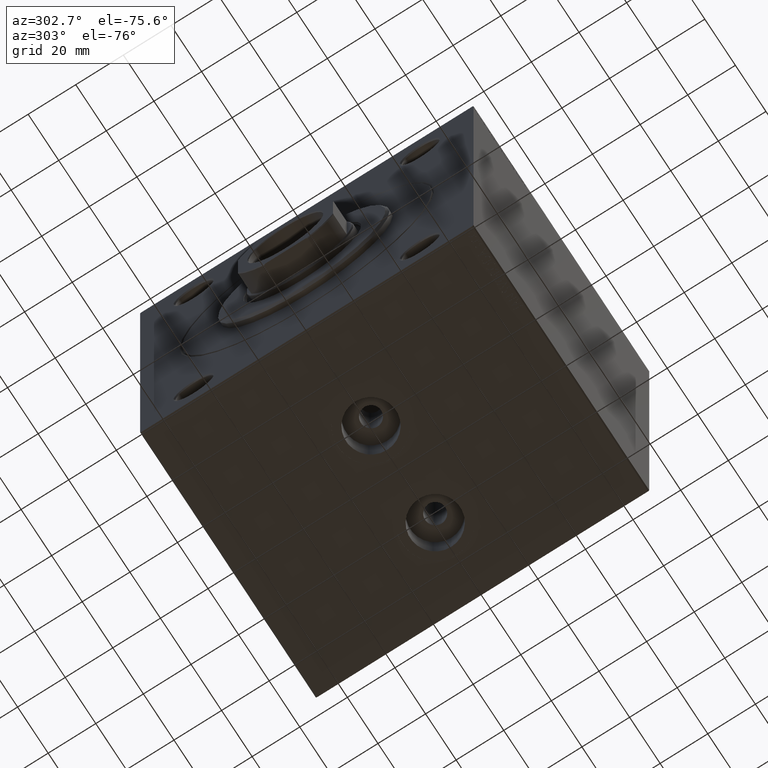
[diagram: clean part render]
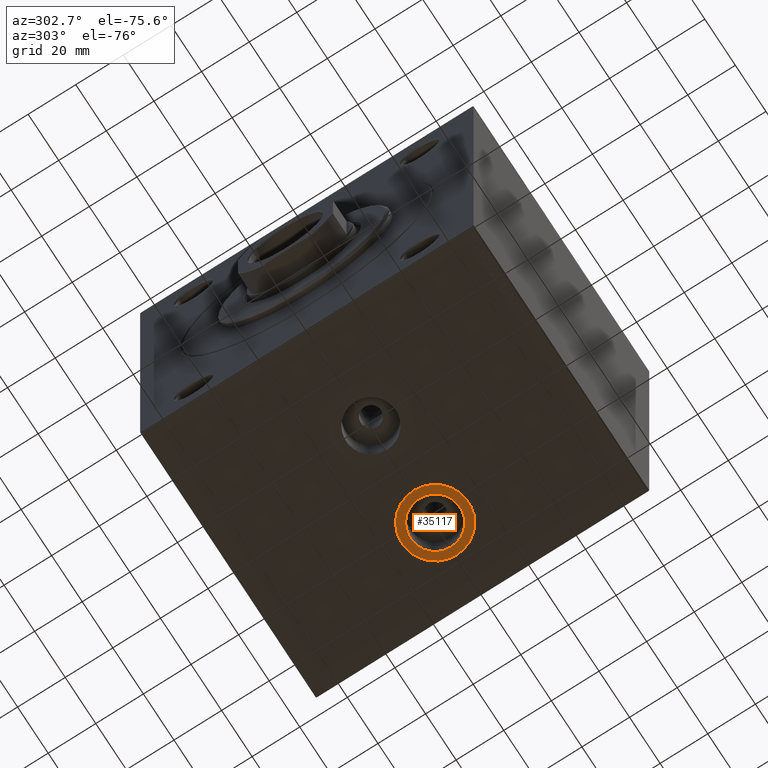
[diagram: same view with one face highlighted and labeled with its STEP entity id]
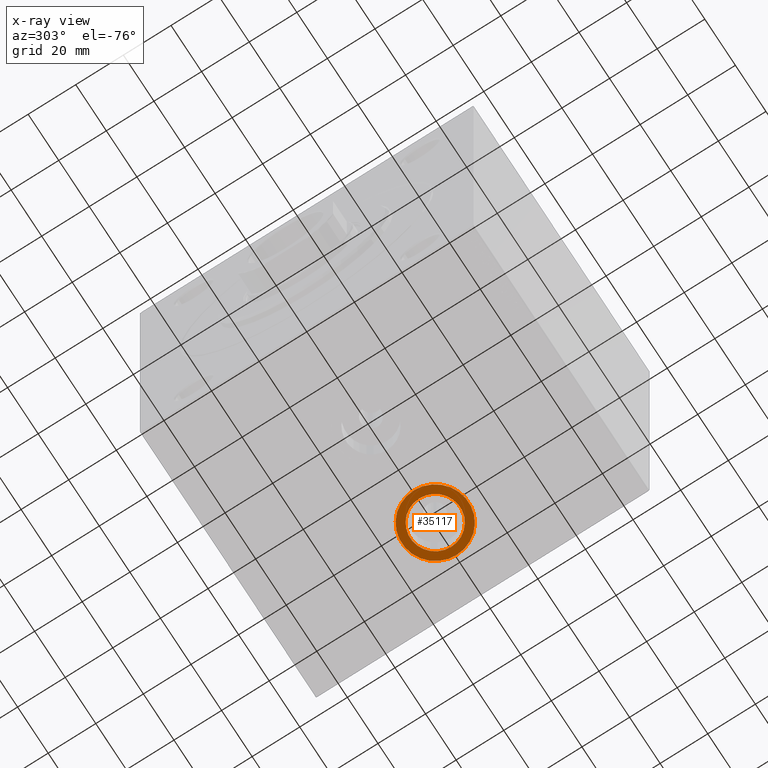
[diagram: x-ray of the same camera — body ghosted, the highlighted face saturated]
A machine part, auxiliary view. The second image highlights one B-rep face of the part: STEP entity #35117.
The next image is the same camera in x-ray: the body ghosted, the highlighted face saturated — about 0% of this face is hidden behind the body in this view.
In plain terms, the highlighted planar face has unit normal (0, 0, -1).
Its self-contained STEP definition (entity closure, byte-faithful):
#1167 = DIRECTION ( 'NONE',  ( 0.000000000000000000, 0.000000000000000000, -1.000000000000000000 ) ) ;
#1359 = FACE_OUTER_BOUND ( 'NONE', #45365, .T. ) ;
#1815 = CARTESIAN_POINT ( 'NONE',  ( 83.99999999999998579, -1.272749711318452810E-14, -84.90000000000000568 ) ) ;
#5252 = PLANE ( 'NONE',  #18647 ) ;
#8107 = AXIS2_PLACEMENT_3D ( 'NONE', #35216, #1167, #32448 ) ;
#8243 = CARTESIAN_POINT ( 'NONE',  ( 83.99999999999998579, -1.272749711318452810E-14, -84.90000000000000568 ) ) ;
#11330 = EDGE_LOOP ( 'NONE', ( #33049, #20281 ) ) ;
#12098 = EDGE_CURVE ( 'NONE', #14101, #15157, #27934, .T. ) ;
#12424 = EDGE_CURVE ( 'NONE', #15639, #13095, #26499, .T. ) ;
#12597 = DIRECTION ( 'NONE',  ( 0.000000000000000000, 0.000000000000000000, -1.000000000000000000 ) ) ;
#13095 = VERTEX_POINT ( 'NONE', #13339 ) ;
#13339 = CARTESIAN_POINT ( 'NONE',  ( 73.51999999999998181, -1.272749711318452810E-14, -84.90000000000000568 ) ) ;
#14101 = VERTEX_POINT ( 'NONE', #18175 ) ;
#15021 = DIRECTION ( 'NONE',  ( -1.000000000000000000, 0.000000000000000000, 0.000000000000000000 ) ) ;
#15157 = VERTEX_POINT ( 'NONE', #24565 ) ;
#15376 = DIRECTION ( 'NONE',  ( -1.000000000000000000, 0.000000000000000000, 0.000000000000000000 ) ) ;
#15639 = VERTEX_POINT ( 'NONE', #26569 ) ;
#15849 = DIRECTION ( 'NONE',  ( 0.000000000000000000, 0.000000000000000000, -1.000000000000000000 ) ) ;
#16549 = CIRCLE ( 'NONE', #42258, 10.48000000000000398 ) ;
#17669 = EDGE_CURVE ( 'NONE', #15157, #14101, #40212, .T. ) ;
#18175 = CARTESIAN_POINT ( 'NONE',  ( 97.99999999999998579, -1.101299159437823287E-14, -84.90000000000000568 ) ) ;
#18240 = DIRECTION ( 'NONE',  ( 0.000000000000000000, 0.000000000000000000, -1.000000000000000000 ) ) ;
#18647 = AXIS2_PLACEMENT_3D ( 'NONE', #1815, #15849, #29876 ) ;
#19689 = ORIENTED_EDGE ( 'NONE', *, *, #12098, .T. ) ;
#20281 = ORIENTED_EDGE ( 'NONE', *, *, #12424, .F. ) ;
#23298 = DIRECTION ( 'NONE',  ( 0.000000000000000000, 0.000000000000000000, -1.000000000000000000 ) ) ;
#23980 = CARTESIAN_POINT ( 'NONE',  ( 83.99999999999998579, -1.272749711318452810E-14, -84.90000000000000568 ) ) ;
#24565 = CARTESIAN_POINT ( 'NONE',  ( 69.99999999999998579, -1.272749711318452810E-14, -84.90000000000000568 ) ) ;
#25775 = AXIS2_PLACEMENT_3D ( 'NONE', #8243, #12597, #15376 ) ;
#26499 = CIRCLE ( 'NONE', #25775, 10.48000000000000398 ) ;
#26569 = CARTESIAN_POINT ( 'NONE',  ( 94.47999999999998977, -1.144406726767810103E-14, -84.90000000000000568 ) ) ;
#27934 = CIRCLE ( 'NONE', #8107, 13.99999999999999822 ) ;
#29876 = DIRECTION ( 'NONE',  ( -1.000000000000000000, 0.000000000000000000, -0.000000000000000000 ) ) ;
#32448 = DIRECTION ( 'NONE',  ( -1.000000000000000000, 0.000000000000000000, 0.000000000000000000 ) ) ;
#33049 = ORIENTED_EDGE ( 'NONE', *, *, #43653, .F. ) ;
#35117 = ADVANCED_FACE ( 'NONE', ( #36775, #1359 ), #5252, .T. ) ;
#35216 = CARTESIAN_POINT ( 'NONE',  ( 83.99999999999998579, -1.272749711318452810E-14, -84.90000000000000568 ) ) ;
#35661 = ORIENTED_EDGE ( 'NONE', *, *, #17669, .T. ) ;
#36775 = FACE_BOUND ( 'NONE', #11330, .T. ) ;
#39487 = AXIS2_PLACEMENT_3D ( 'NONE', #23980, #23298, #41022 ) ;
#40212 = CIRCLE ( 'NONE', #39487, 13.99999999999999822 ) ;
#41022 = DIRECTION ( 'NONE',  ( -1.000000000000000000, 0.000000000000000000, 0.000000000000000000 ) ) ;
#42258 = AXIS2_PLACEMENT_3D ( 'NONE', #43114, #18240, #15021 ) ;
#43114 = CARTESIAN_POINT ( 'NONE',  ( 83.99999999999998579, -1.272749711318452810E-14, -84.90000000000000568 ) ) ;
#43653 = EDGE_CURVE ( 'NONE', #13095, #15639, #16549, .T. ) ;
#45365 = EDGE_LOOP ( 'NONE', ( #35661, #19689 ) ) ;